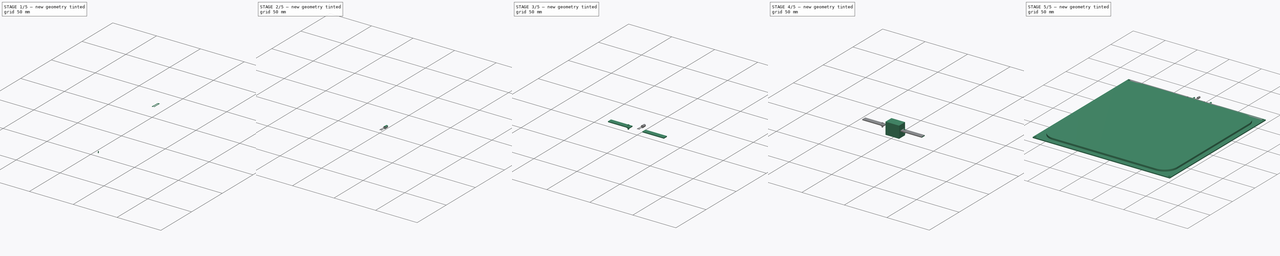
[diagram: build sequence overview — one tinted view per stage of 5, left to right]
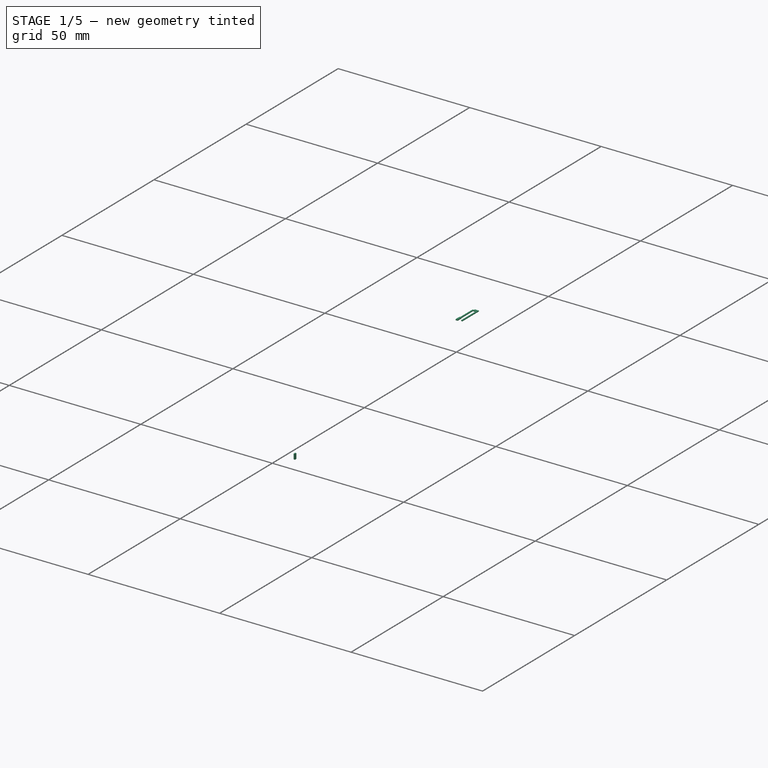
[diagram: stage 1 of 5 — iso view after this stage's code; geometry added in this stage tinted green]
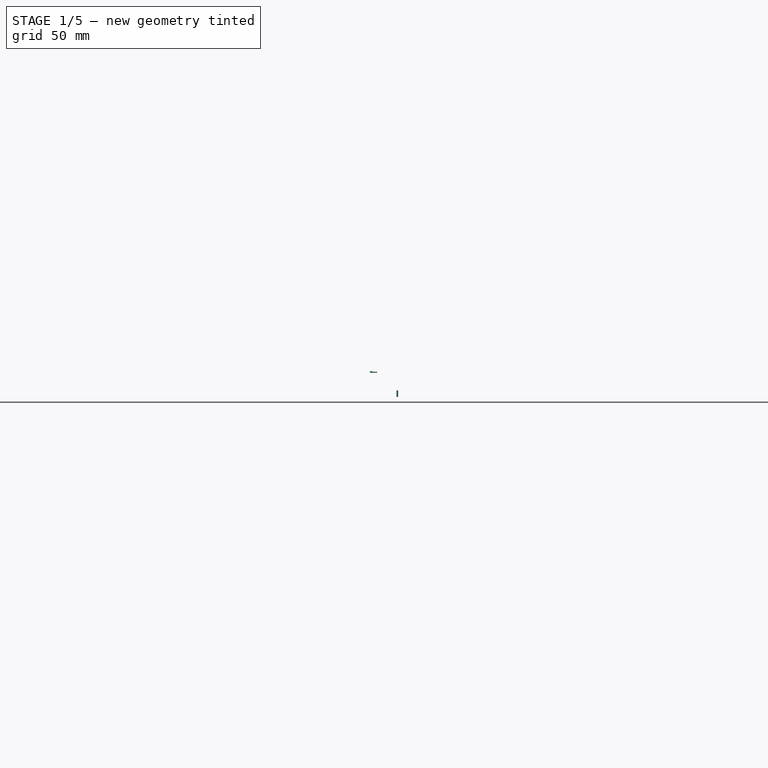
[diagram: stage 1 of 5 — front view after this stage's code; geometry added in this stage tinted green]
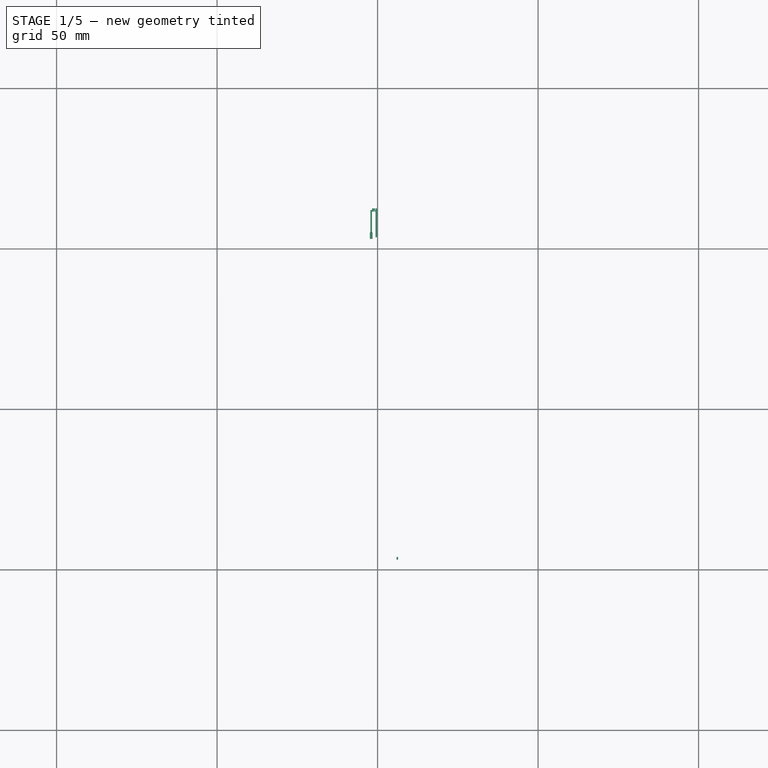
[diagram: stage 1 of 5 — top view after this stage's code; geometry added in this stage tinted green]
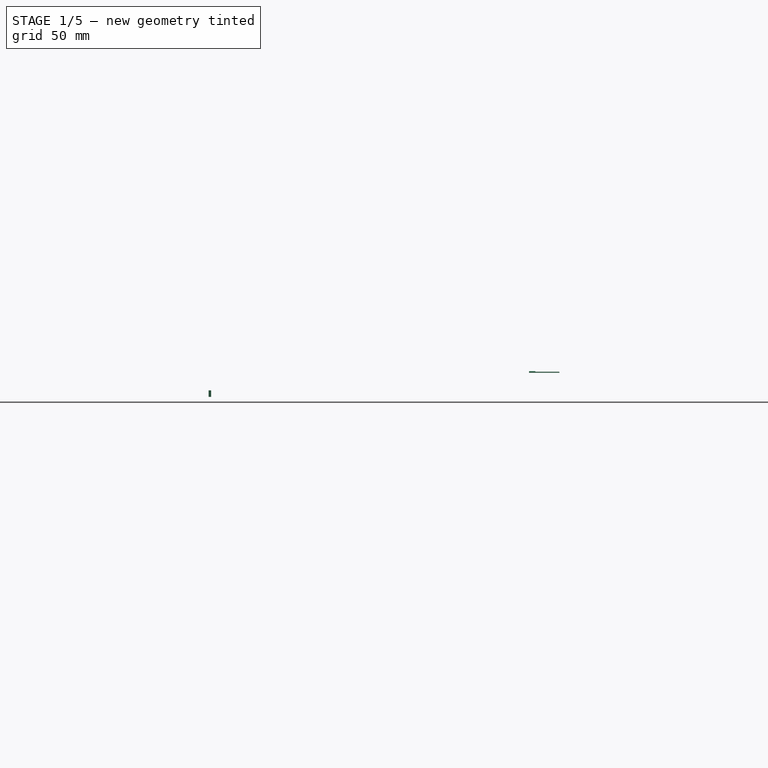
[diagram: stage 1 of 5 — right view after this stage's code; geometry added in this stage tinted green]
FCSTD DOCUMENT  (FreeCAD 0.14R3702 (Git))
Label: CamaCaliente
License: CC-BY 3.0
LicenseURL: http://creativecommons.org/licenses/by/3.0/
objects: Part::MultiFuse×8, Part::Box×7, Sketcher::SketchObject×7, Part::Cylinder×6, Part::Fillet×5, App::DocumentObjectGroup×3, PartDesign::Pad×2, Part::Sweep×2, PartDesign::LinearPattern×2, PartDesign::Pocket×1, Part::Sphere×1, PartDesign::MultiTransform×1
note: 45 computed .brp shape members not serialized (recipe doc carries the construction recipe); baked Part::Feature solids carry a one-line shape summary decoded from their .brp

FEATURE [Part::Box] Box002  label="Cubo002"
  Height = 2
  Length = 0.5
  Placement = pos=(5.9,1.6,-6) rot=(0,0,1;0rad)
  Width = 0.8
FEATURE [Part::Box] Box003  label="Cubo003"
  Height = 2
  Length = 0.5
  Placement = pos=(5.9,3.2,-6) rot=(0,0,1;0rad)
  Width = 0.8
FEATURE [Sketcher::SketchObject] Sketch001
  Placement = pos=(0,0,0) rot=(0.57735,0.57735,0.57735;2.0944rad)
  sketch-geometry (7):
    g0: LineSegment StartX=9.64785 StartY=-5.5142 StartZ=0 EndX=10.1478 EndY=-5.5142 EndZ=0
    g1: LineSegment StartX=10.1478 StartY=-5.5142 StartZ=0 EndX=10.1478 EndY=3.4858 EndZ=0
    g2: LineSegment StartX=10.1478 StartY=3.4858 StartZ=0 EndX=9.64785 EndY=3.4858 EndZ=0
    g3: LineSegment StartX=9.64785 StartY=3.4858 StartZ=0 EndX=9.64785 EndY=2.9858 EndZ=0
    g4: LineSegment StartX=9.64785 StartY=2.9858 StartZ=0 EndX=9.14785 EndY=2.4858 EndZ=0
    g5: LineSegment StartX=9.14785 StartY=2.4858 StartZ=0 EndX=9.64785 EndY=2.4858 EndZ=0
    g6: LineSegment StartX=9.64785 StartY=2.4858 StartZ=0 EndX=9.64785 EndY=-5.5142 EndZ=0
  constraints (19):
    c: Horizontal(g0)
    c: Coincident(g0,g1)
    c: Vertical(g1)
    c: Coincident(g1,g2)
    c: Coincident(g2,g3)
    c: Vertical(g3)
    c: Coincident(g3,g4)
    c: Coincident(g4,g5)
    c: Horizontal(g5)
    c: Coincident(g5,g6)
    c: Coincident(g6,g0)
    c: Vertical(g6)
    c: Equal(g0,g2)
    c: DistanceX(g0) = 0.5
    c: Angle(g5,g4) = 0.785398
    c: Horizontal(g2)
    c: DistanceY(g3) = -0.5
    c: DistanceY(g5,g3) = 0.5
    c: DistanceY(g6) = -8
FEATURE [PartDesign::Pad] Pad002  label="anodo"
  Length = 0.3
  Length2 = 100
  Placement = pos=(0,0,0) rot=(0.57735,0.57735,0.57735;2.0944rad)
  Sketch = -> Sketch001
  Type = 0
FEATURE [Sketcher::SketchObject] Sketch002
  Placement = pos=(0,0,0) rot=(0.57735,0.57735,0.57735;2.0944rad)
  sketch-geometry (9):
    g0: LineSegment StartX=8.0538 StartY=-5.51883 StartZ=0 EndX=8.0538 EndY=2.98117 EndZ=0
    g1: LineSegment StartX=8.0538 StartY=2.98117 StartZ=0 EndX=8.5538 EndY=2.98117 EndZ=0
    g2: LineSegment StartX=8.5538 StartY=2.98117 StartZ=0 EndX=8.5538 EndY=3.48117 EndZ=0
    g3: LineSegment StartX=8.5538 StartY=3.48117 StartZ=0 EndX=9.5538 EndY=3.48117 EndZ=0
    g4: LineSegment StartX=9.5538 StartY=3.48117 StartZ=0 EndX=9.5538 EndY=2.98117 EndZ=0
    g5: LineSegment StartX=9.5538 StartY=2.98117 StartZ=0 EndX=9.0538 EndY=2.48117 EndZ=0
    g6: LineSegment StartX=9.0538 StartY=2.48117 StartZ=0 EndX=8.5538 EndY=2.48117 EndZ=0
    g7: LineSegment StartX=8.5538 StartY=2.48117 StartZ=0 EndX=8.5538 EndY=-5.51883 EndZ=0
    g8: LineSegment StartX=8.5538 StartY=-5.51883 StartZ=0 EndX=8.0538 EndY=-5.51883 EndZ=0
  constraints (25):
    c: Vertical(g0)
    c: Coincident(g0,g1)
    c: Horizontal(g1)
    c: Coincident(g1,g2)
    c: Vertical(g2)
    c: Coincident(g2,g3)
    c: Horizontal(g3)
    c: Coincident(g3,g4)
    c: Coincident(g4,g5)
    c: Coincident(g5,g6)
    c: Horizontal(g6)
    c: Coincident(g6,g7)
    c: Vertical(g7)
    c: Coincident(g7,g8)
    c: Coincident(g8,g0)
    c: Horizontal(g8)
    c: Vertical(g4)
    c: Angle(g5,g6) = 2.35619
    c: DistanceX(g8) = -0.5
    c: Equal(g1,g8)
    c: Equal(g8,g4)
    c: DistanceY(g6,g2) = 1
    c: DistanceY(g2) = 0.5
    c: DistanceX(g3) = 1
    c: DistanceY(g7) = -8
FEATURE [PartDesign::Pad] Pad003  label="catodo"
  Length = 0.3
  Length2 = 100
  Placement = pos=(0,0,0) rot=(0.57735,0.57735,0.57735;2.0944rad)
  Sketch = -> Sketch002
  Type = 0
FEATURE [Part::MultiFuse] Fusion001  label="ACLed"
  Placement = pos=(-10.3,109,1.5) rot=(-0.57735,-0.57735,-0.57735;2.0944rad)
  Shapes = -> [Pad002,Pad003]
FEATURE [Part::Fillet] Fillet001  label="Soldadura01"
  Base = -> Box002
  Edges = 4 edges r=0.2: [Edge5,Edge6,Edge7,Edge8]
  Placement = pos=(-4,109,-4.4) rot=(-0.57735,-0.57735,-0.57735;2.0944rad)
FEATURE [Part::MultiFuse] Fusion006
  Shapes = -> [Fusion001,Fillet001]
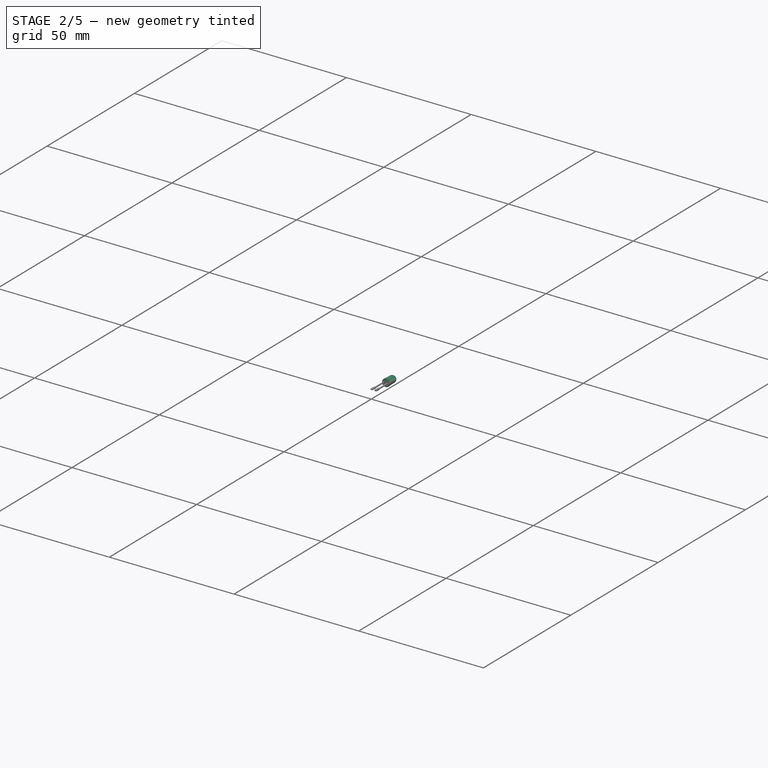
[diagram: stage 2 of 5 — iso view after this stage's code; geometry added in this stage tinted green]
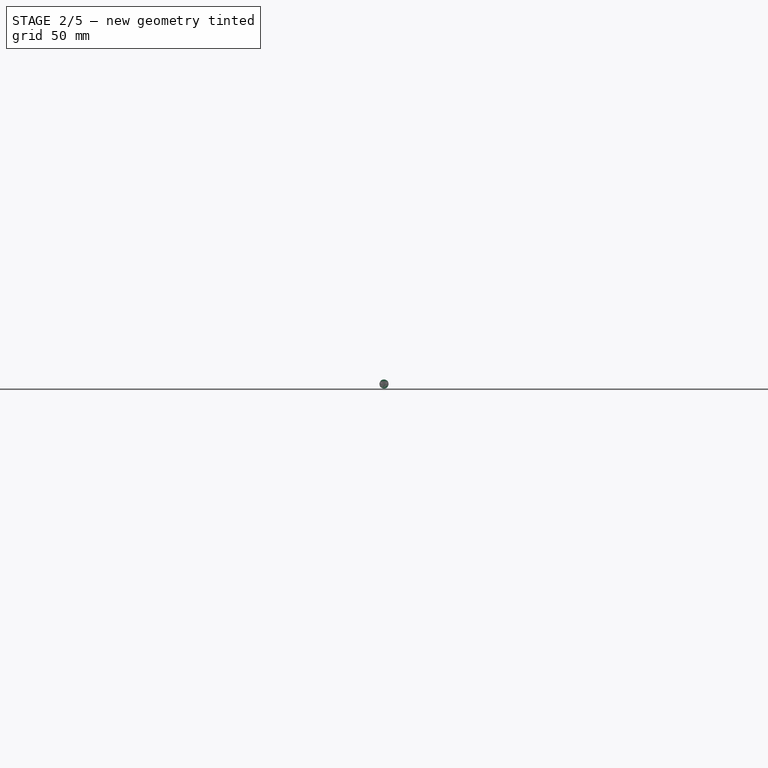
[diagram: stage 2 of 5 — front view after this stage's code; geometry added in this stage tinted green]
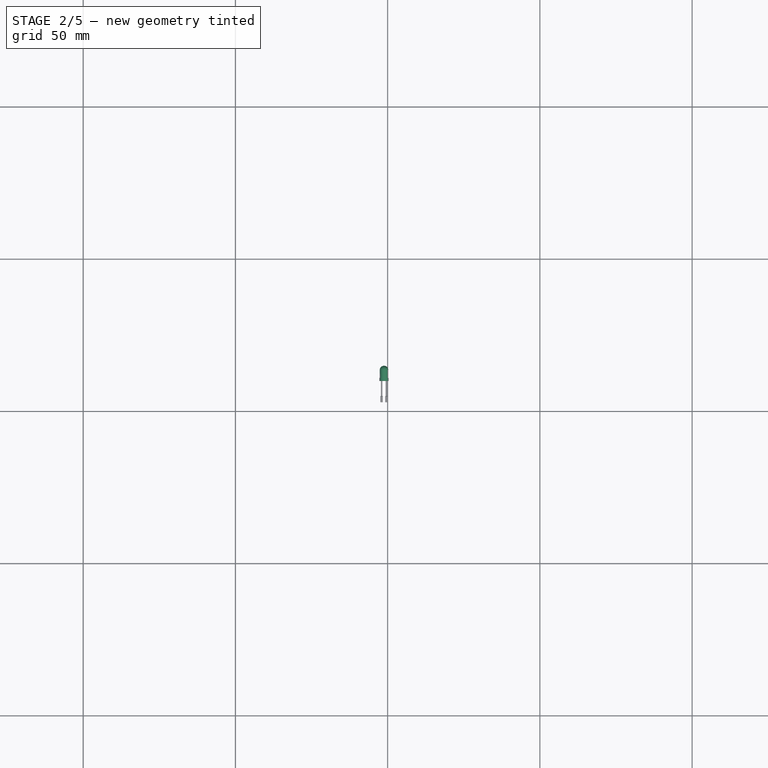
[diagram: stage 2 of 5 — top view after this stage's code; geometry added in this stage tinted green]
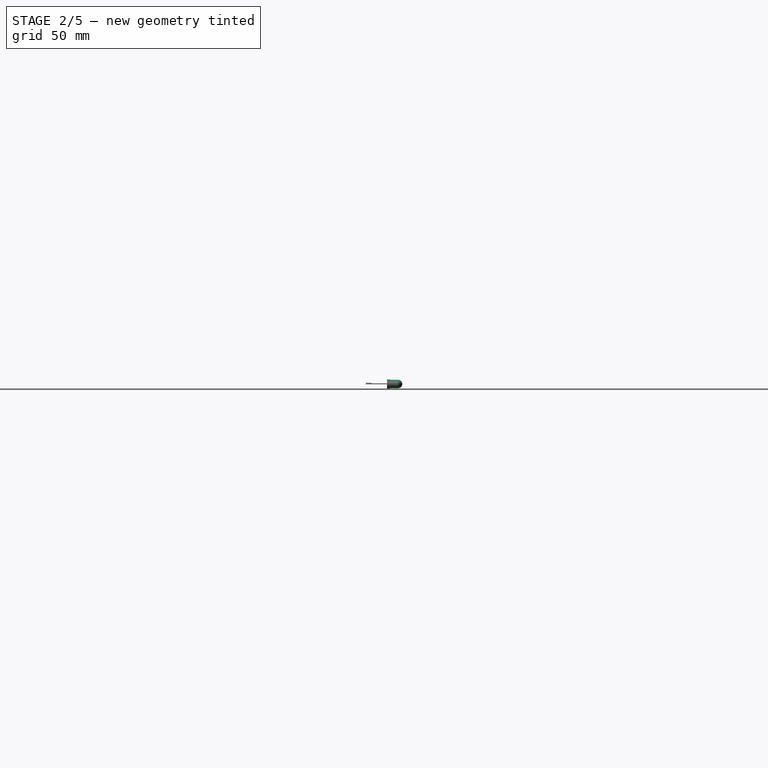
[diagram: stage 2 of 5 — right view after this stage's code; geometry added in this stage tinted green]
FEATURE [Part::Sphere] Sphere  label="Esféra"
  Angle1 = -90
  Angle2 = 90
  Angle3 = 180
  Placement = pos=(0,0,3.6) rot=(1,0,0;1.5708rad)
  Radius = 1.4
FEATURE [Part::Cylinder] Cylinder002  label="Cilindro002"
  Angle = 360
  Height = 1
  Radius = 1.5
FEATURE [Part::Cylinder] Cylinder003  label="Cilindro003"
  Angle = 360
  Height = 3.6
  Radius = 1.4
FEATURE [Part::MultiFuse] Fusion  label="FundaLed"
  Placement = pos=(-1.2,110,1.6) rot=(-0.57735,-0.57735,-0.57735;2.0944rad)
  Shapes = -> [Cylinder003,Cylinder002,Sphere]
FEATURE [Part::Fillet] Fillet002  label="Soldadura02"
  Base = -> Box003
  Edges = 4 edges r=0.2: [Edge5,Edge6,Edge7,Edge8]
  Placement = pos=(-4,109,-4.4) rot=(-0.57735,-0.57735,-0.57735;2.0944rad)
FEATURE [Part::MultiFuse] Fusion007  label="Led"
  Shapes = -> [Fillet002,Fusion006]
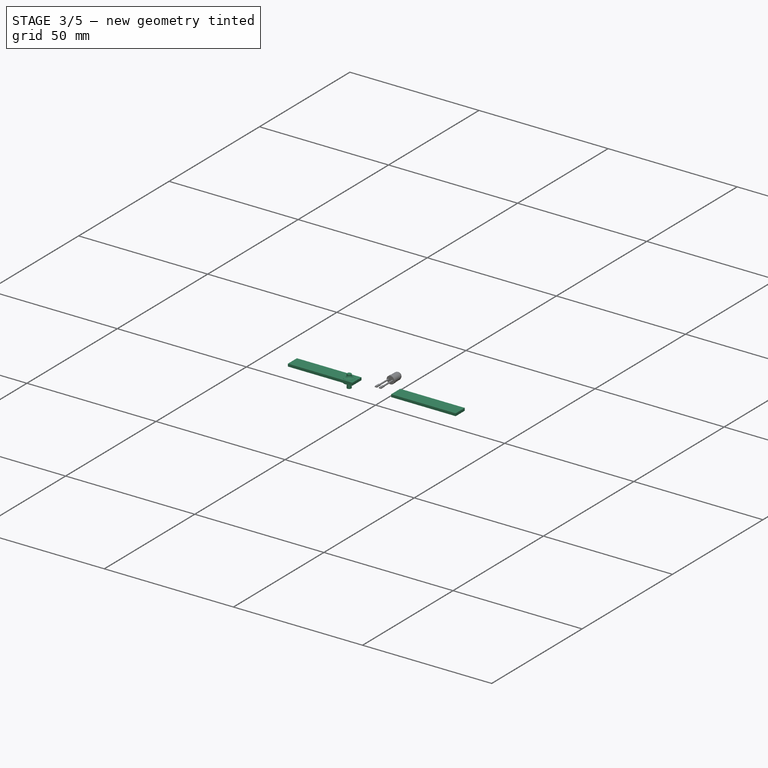
[diagram: stage 3 of 5 — iso view after this stage's code; geometry added in this stage tinted green]
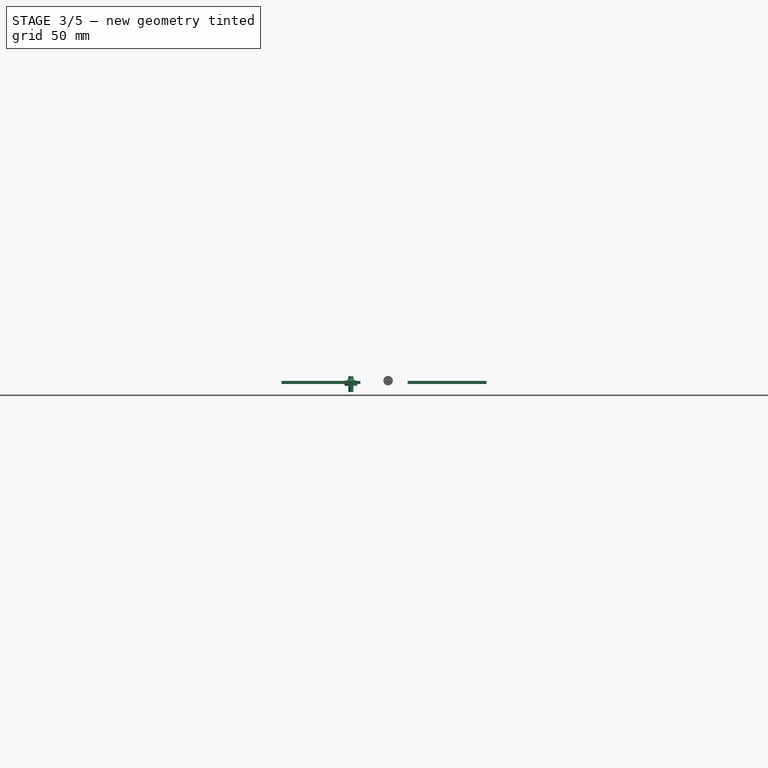
[diagram: stage 3 of 5 — front view after this stage's code; geometry added in this stage tinted green]
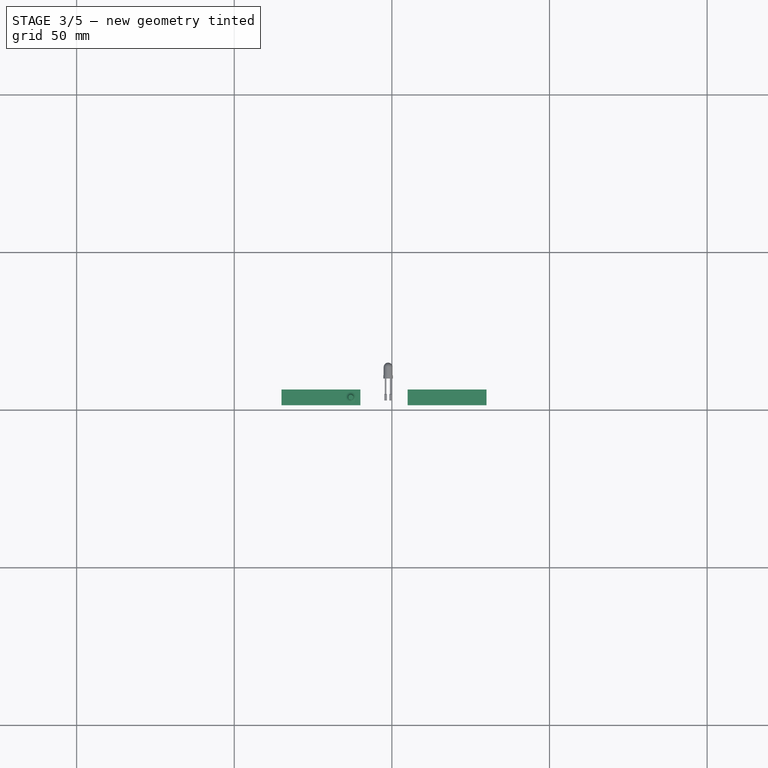
[diagram: stage 3 of 5 — top view after this stage's code; geometry added in this stage tinted green]
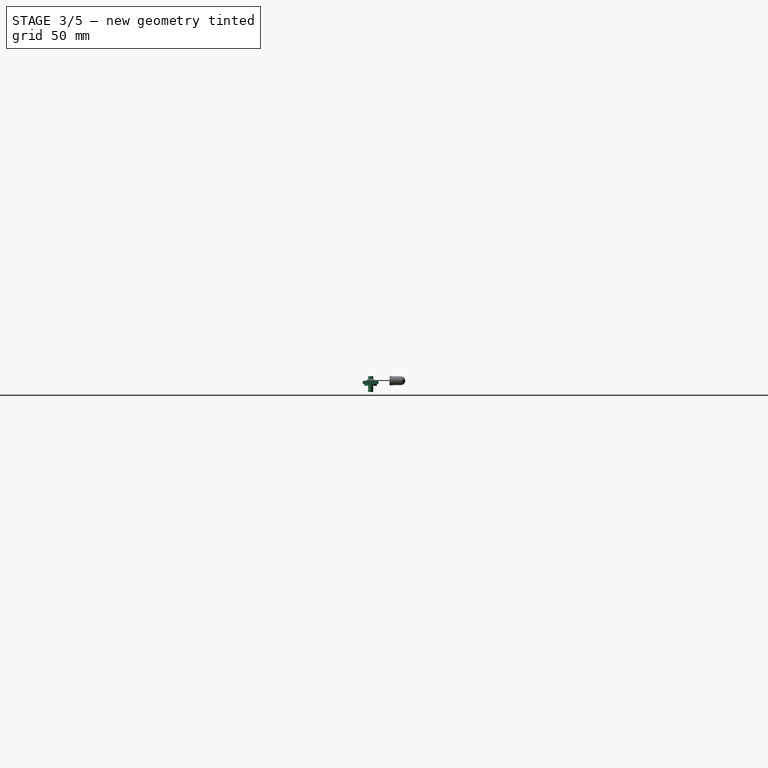
[diagram: stage 3 of 5 — right view after this stage's code; geometry added in this stage tinted green]
FEATURE [Part::Cylinder] Cylinder004  label="Cilindro004"
  Angle = 360
  Height = 5
  Placement = pos=(-8,104,-2) rot=(0,0,1;0rad)
  Radius = 0.8
FEATURE [Part::Cylinder] Cylinder006  label="Cilindro006"
  Angle = 360
  Height = 1.6
  Placement = pos=(-8,104,0) rot=(0,0,1;0rad)
  Radius = 2
FEATURE [Part::MultiFuse] Fusion003
  Shapes = -> [Cylinder006,Cylinder004]
FEATURE [Part::Fillet] Fillet003
  Base = -> Fusion003
  Edges = 1 edges r=1: [Edge4]
FEATURE [Part::Box] Box005  label="Cubo005"
  Height = 1
  Length = 25
  Placement = pos=(5,101.5,0.55) rot=(0,0,1;0rad)
  Width = 5
FEATURE [Part::Box] Box006  label="Cubo006"
  Height = 1
  Length = 25
  Placement = pos=(-30,101.5,0.55) rot=(0,0,1;0rad)
  Width = 5
FEATURE [Part::MultiFuse] Fusion005  label="SoldaduraNegro"
  Placement = pos=(-5,0,0) rot=(0,0,1;0rad)
  Shapes = -> [Box006,Fillet003]
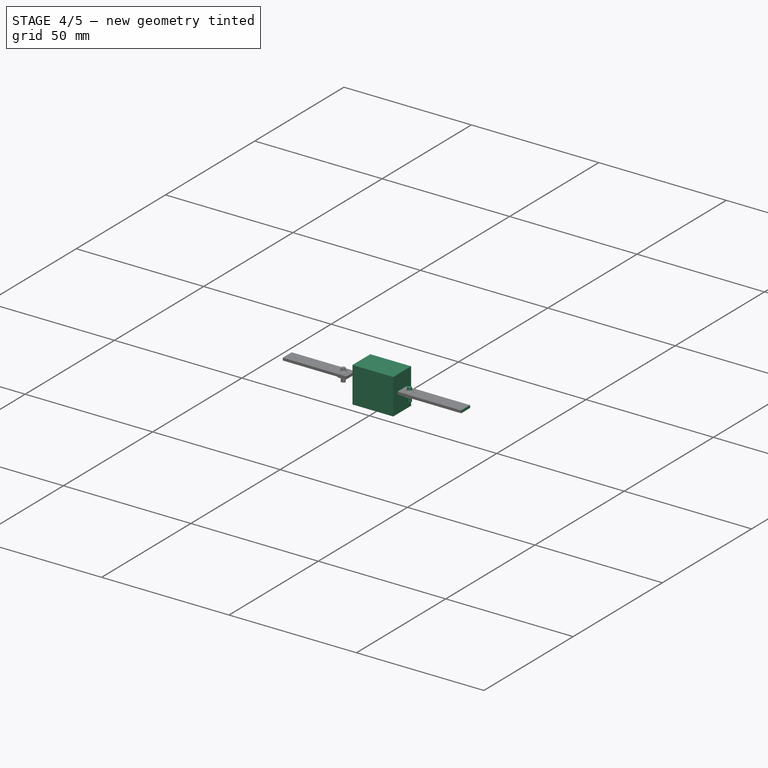
[diagram: stage 4 of 5 — iso view after this stage's code; geometry added in this stage tinted green]
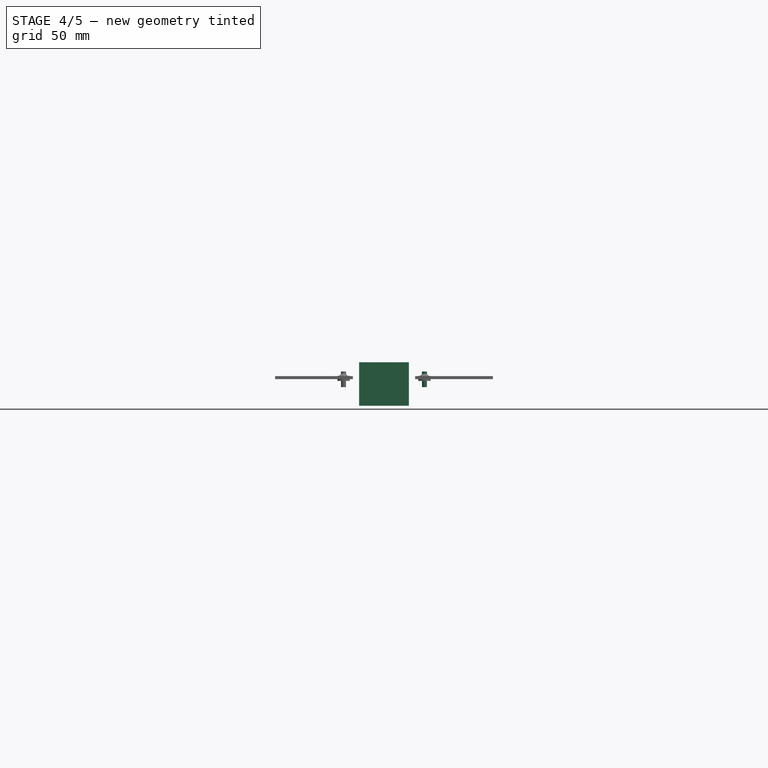
[diagram: stage 4 of 5 — front view after this stage's code; geometry added in this stage tinted green]
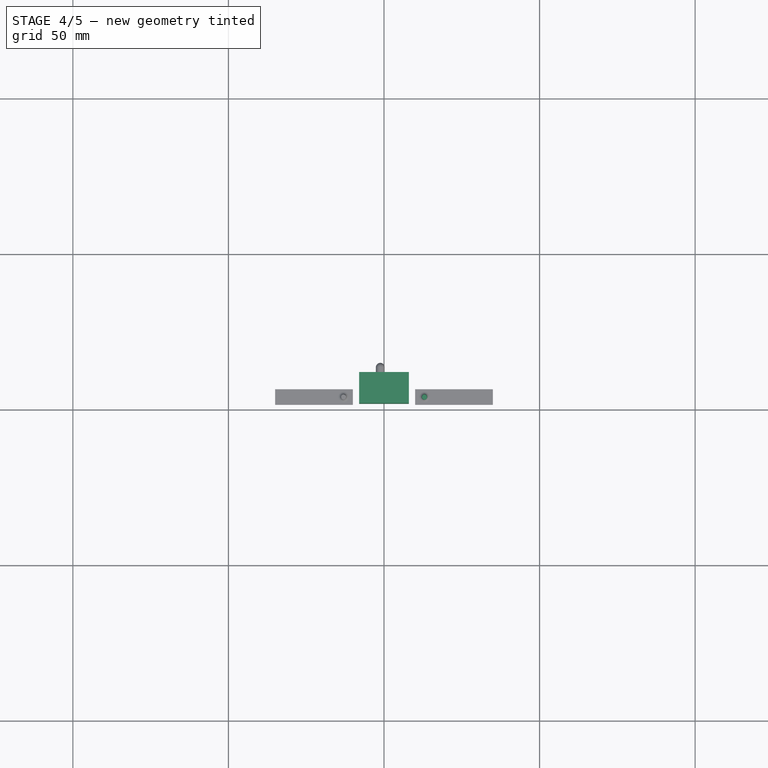
[diagram: stage 4 of 5 — top view after this stage's code; geometry added in this stage tinted green]
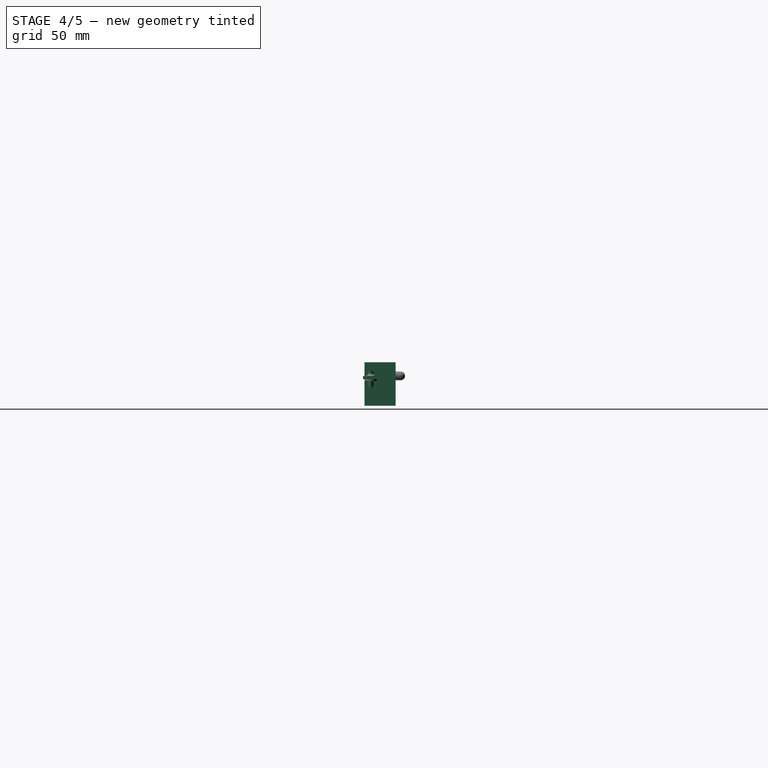
[diagram: stage 4 of 5 — right view after this stage's code; geometry added in this stage tinted green]
FEATURE [Part::Box] Box004  label="Cubo004"
  Height = 14
  Length = 16
  Placement = pos=(-8,102,-8) rot=(0,0,1;0rad)
  Width = 10
FEATURE [Part::Cylinder] Cylinder  label="Cilindro"
  Angle = 360
  Height = 5
  Placement = pos=(8,104,-2) rot=(0,0,1;0rad)
  Radius = 0.8
FEATURE [Part::Cylinder] Cylinder005  label="Cilindro005"
  Angle = 360
  Height = 1.6
  Placement = pos=(8,104,0) rot=(0,0,1;0rad)
  Radius = 2
FEATURE [Part::MultiFuse] Fusion002
  Shapes = -> [Cylinder,Cylinder005]
FEATURE [Part::Fillet] Fillet004
  Base = -> Fusion002
  Edges = 1 edges r=1: [Edge3]
FEATURE [Part::MultiFuse] Fusion004  label="SoldaduraRojo"
  Placement = pos=(5,0,0) rot=(0,0,1;0rad)
  Shapes = -> [Box005,Fillet004]
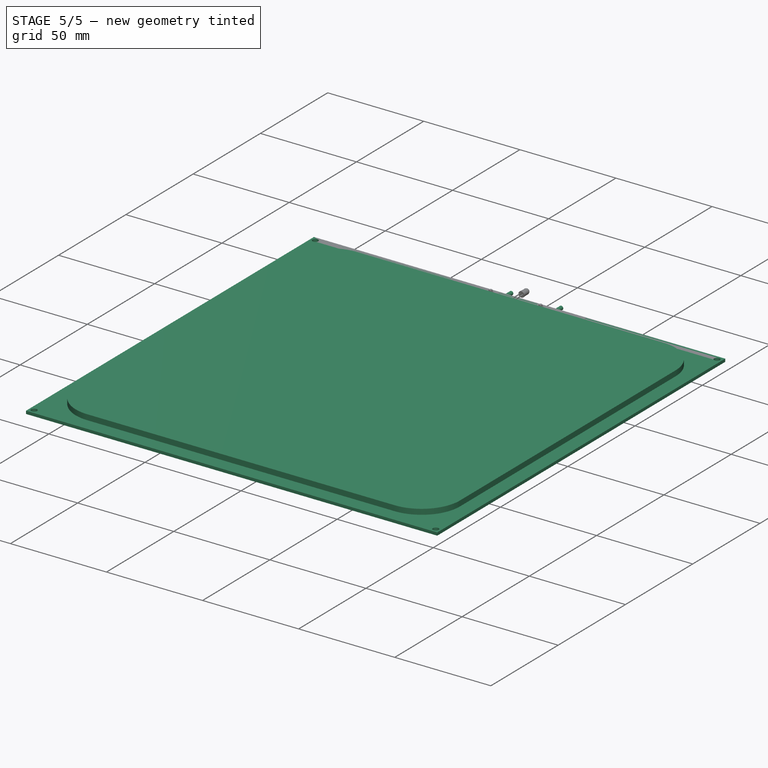
[diagram: stage 5 of 5 — iso view after this stage's code; geometry added in this stage tinted green]
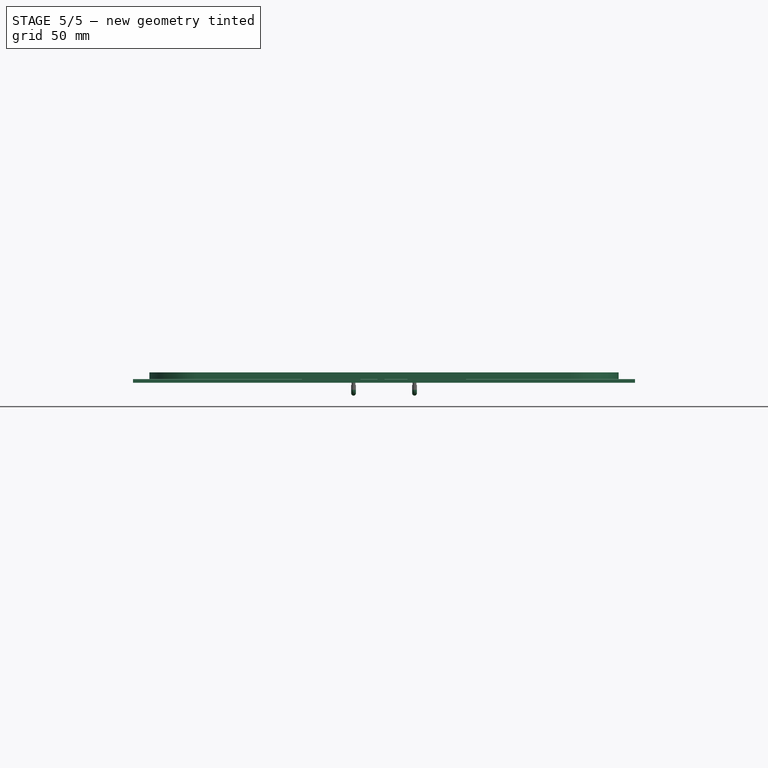
[diagram: stage 5 of 5 — front view after this stage's code; geometry added in this stage tinted green]
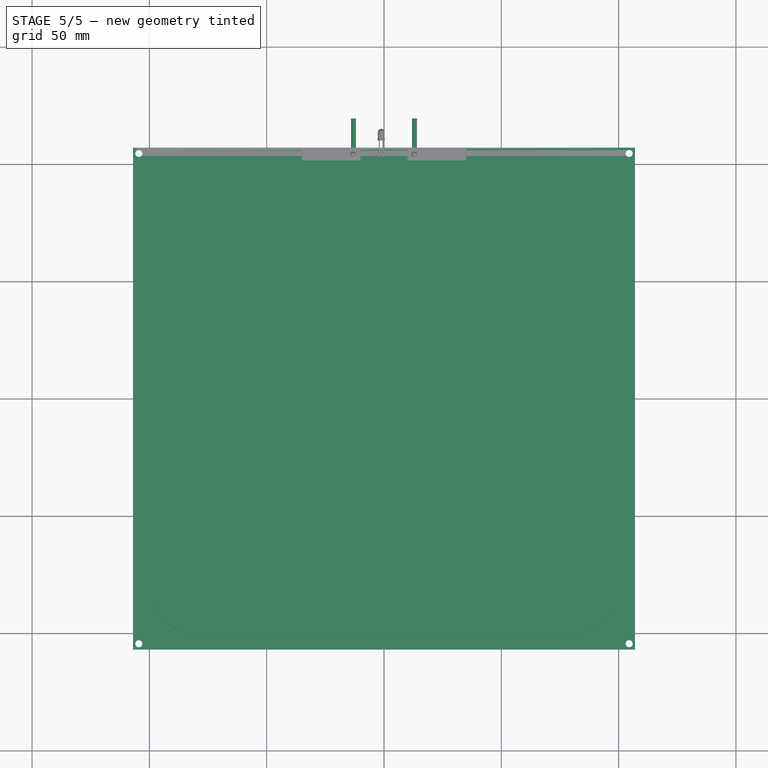
[diagram: stage 5 of 5 — top view after this stage's code; geometry added in this stage tinted green]
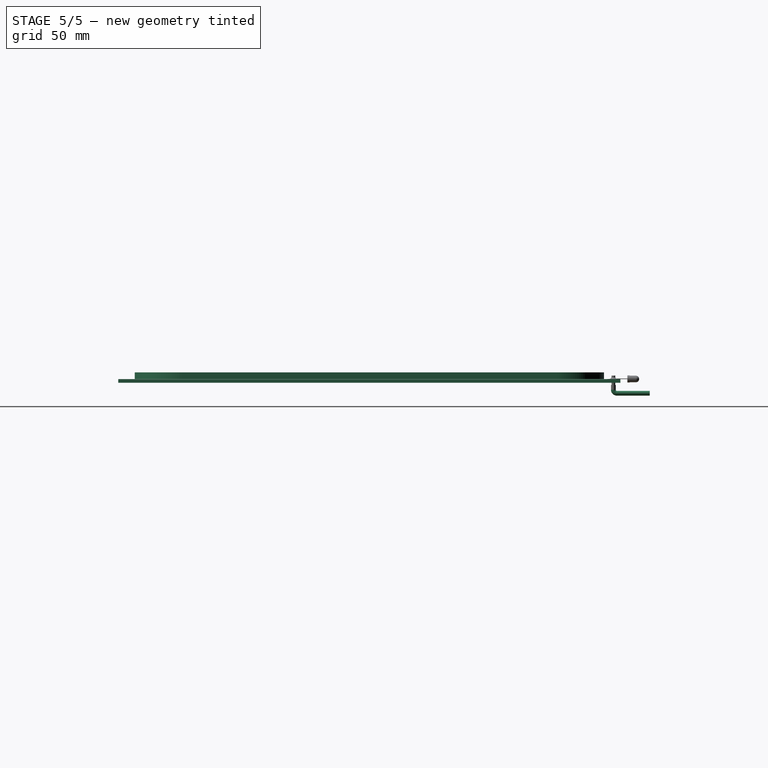
[diagram: stage 5 of 5 — right view after this stage's code; geometry added in this stage tinted green]
FEATURE [Part::Box] Box  label="Cubo"
  Height = 2.8
  Length = 200
  Width = 200
FEATURE [Part::Fillet] Fillet  label="Cristal"
  Base = -> Box
  Edges = 4 edges r=20: [Edge1,Edge3,Edge5,Edge7]
  Placement = pos=(-100,-100,1.6) rot=(0,0,1;0rad)
FEATURE [Part::Box] Box001  label="Cubo001"
  Height = 1.5
  Length = 214
  Placement = pos=(-107,-107,0) rot=(0,0,1;0rad)
  Width = 214
FEATURE [Sketcher::SketchObject] Sketch
  Placement = pos=(-107,-107,1.5) rot=(0,0,1;0rad)
  Support = -> Box001 [Face6]
  sketch-geometry (1):
    g0: Circle CenterX=2.5 CenterY=2.5 CenterZ=0 NormalX=0 NormalY=0 NormalZ=1 Radius=1.5
  constraints (3):
    c: Radius(g0) = 1.5
    c: DistanceY(g-1,g0) = 2.5
    c: DistanceX(g-1,g0) = 2.5
FEATURE [PartDesign::Pocket] Pocket
  Length = 5
  Placement = pos=(-107,-107,0) rot=(0,0,1;0rad)
  Sketch = -> Sketch
  Type = 1
FEATURE [Sketcher::SketchObject] Sketch003
  ExternalGeometry = -> [Box004]
  Placement = pos=(-8,102,-8) rot=(0.57735,-0.57735,-0.57735;2.0944rad)
  Support = -> Box004 [Face1]
  sketch-geometry (3):
    g0: LineSegment StartX=-2 StartY=7 StartZ=0 EndX=-2 EndY=5 EndZ=0
    g1: LineSegment StartX=-3.5 StartY=3.5 StartZ=0 EndX=-17.5 EndY=3.5 EndZ=0
    g2: ArcOfCircle CenterX=-3.5 CenterY=5 CenterZ=0 NormalX=0 NormalY=0 NormalZ=1 Radius=1.5 StartAngle=4.71239 EndAngle=6.28319
  constraints (9):
    c: Vertical(g0)
    c: Horizontal(g1)
    c: Tangent(g0,g2)
    c: Tangent(g1,g2)
    c: Radius(g2) = 1.5
    c: DistanceY(g0) = -2
    c: DistanceX(g1) = -14
    c: DistanceY(g0,g-3) = 7
    c: DistanceX(g0,g-3) = 2
FEATURE [Sketcher::SketchObject] Sketch004
  ExternalGeometry = -> [Box004]
  Placement = pos=(8,102,-8) rot=(0.57735,0.57735,0.57735;2.0944rad)
  Support = -> Box004 [Face2]
  sketch-geometry (3):
    g0: LineSegment StartX=2 StartY=7 StartZ=0 EndX=2 EndY=5 EndZ=0
    g1: LineSegment StartX=3.5 StartY=3.5 StartZ=0 EndX=17.5 EndY=3.5 EndZ=0
    g2: ArcOfCircle CenterX=3.5 CenterY=5 CenterZ=0 NormalX=0 NormalY=0 NormalZ=1 Radius=1.5 StartAngle=3.14159 EndAngle=4.71239
  constraints (9):
    c: Vertical(g0)
    c: Horizontal(g1)
    c: Tangent(g0,g2)
    c: Tangent(g1,g2)
    c: Radius(g2) = 1.5
    c: DistanceY(g0) = -2
    c: DistanceX(g1) = 14
    c: DistanceY(g-3,g0) = -7
    c: DistanceX(g0,g-3) = -2
FEATURE [Sketcher::SketchObject] Sketch005
  ExternalGeometry = -> [Box004]
  Placement = pos=(-8,112,-8) rot=(0,0.707107,0.707107;3.14159rad)
  Support = -> Box004 [Face4]
  sketch-geometry (1):
    g0: Circle CenterX=-16 CenterY=3.5114 CenterZ=0 NormalX=0 NormalY=0 NormalZ=1 Radius=1
  constraints (2):
    c: PointOnObject(g0,g-4)
    c: Radius(g0) = 1
FEATURE [Part::Sweep] Sweep  label="CableRojo"
  Frenet = true
  Placement = pos=(5,0,0) rot=(0,0,1;0rad)
  Sections = -> [Sketch005]
  Solid = true
  Spine = -> Sketch004 [Edge2,Edge3,Edge1]
  Transition = 1
FEATURE [Sketcher::SketchObject] Sketch006
  Placement = pos=(-8,112,-8) rot=(0,0.707107,0.707107;3.14159rad)
  Support = -> Box004 [Face4]
  sketch-geometry (1):
    g0: Circle CenterX=0 CenterY=3.48898 CenterZ=0 NormalX=0 NormalY=0 NormalZ=1 Radius=1
  constraints (2):
    c: PointOnObject(g0,g-2)
    c: Radius(g0) = 1
FEATURE [Part::Sweep] Sweep001  label="CableNegro"
  Frenet = true
  Placement = pos=(-5,0,0) rot=(0,0,1;0rad)
  Sections = -> [Sketch006]
  Solid = true
  Spine = -> Sketch003 [Edge3,Edge2,Edge1]
  Transition = 1
FEATURE [PartDesign::LinearPattern] LinearPattern
  Direction = -> Sketch [V_Axis]
  Length = 209
  Occurrences = 2
  Placement = pos=(-107,-107,0) rot=(0,0,1;0rad)
FEATURE [PartDesign::LinearPattern] LinearPattern001
  Direction = -> Sketch [H_Axis]
  Length = 209
  Occurrences = 2
  Placement = pos=(-107,-107,0) rot=(0,0,1;0rad)
FEATURE [PartDesign::MultiTransform] MultiTransform
  Originals = -> [Pocket]
  Placement = pos=(-107,-107,0) rot=(0,0,1;0rad)
  Transformations = -> [LinearPattern,LinearPattern001]
FEATURE [App::DocumentObjectGroup] Grupo  label="Cama"
  Group = -> [MultiTransform,Box001,Pocket]
FEATURE [App::DocumentObjectGroup] Grupo001  label="Cables"
  Group = -> [Sweep,Fusion004,Sweep001,Fusion005,Sketch003,Sketch004,Box004]
FEATURE [App::DocumentObjectGroup] Grupo002  label="DiodoLed"
  Group = -> [Fusion007,Fusion]
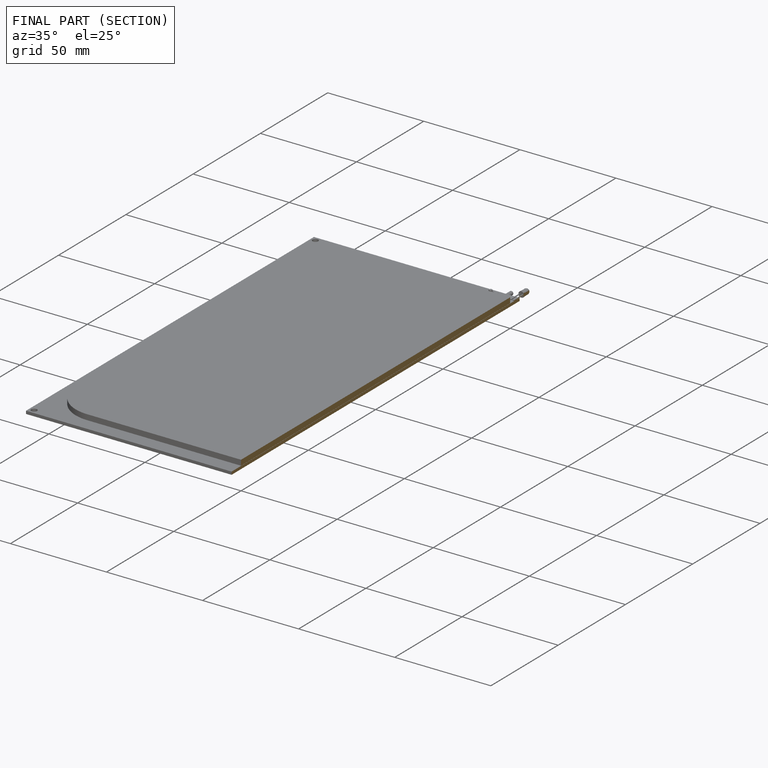
[diagram: finished part — half-section view (interior)]
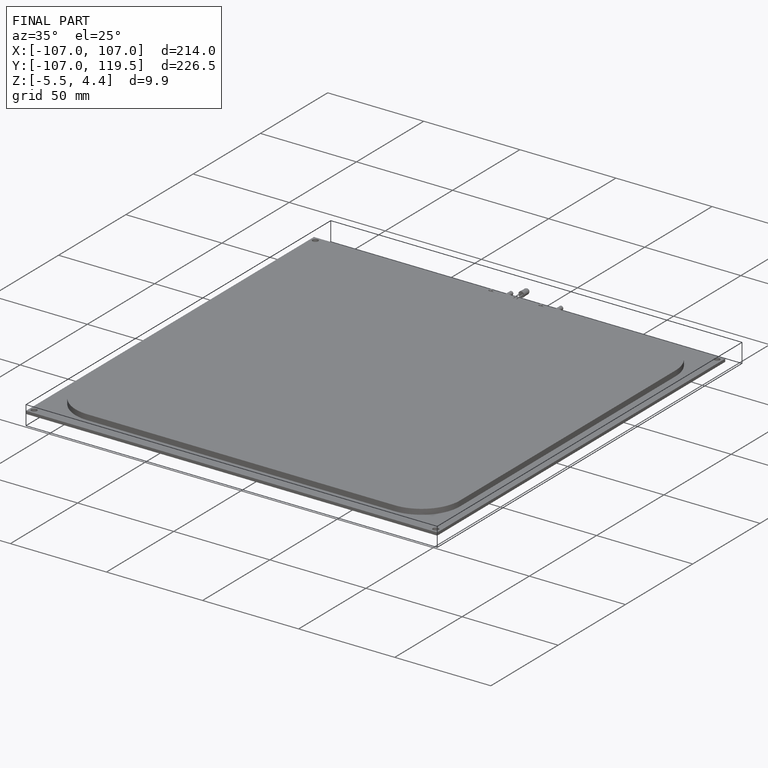
[diagram: finished part — iso view with bounding-box wireframe]
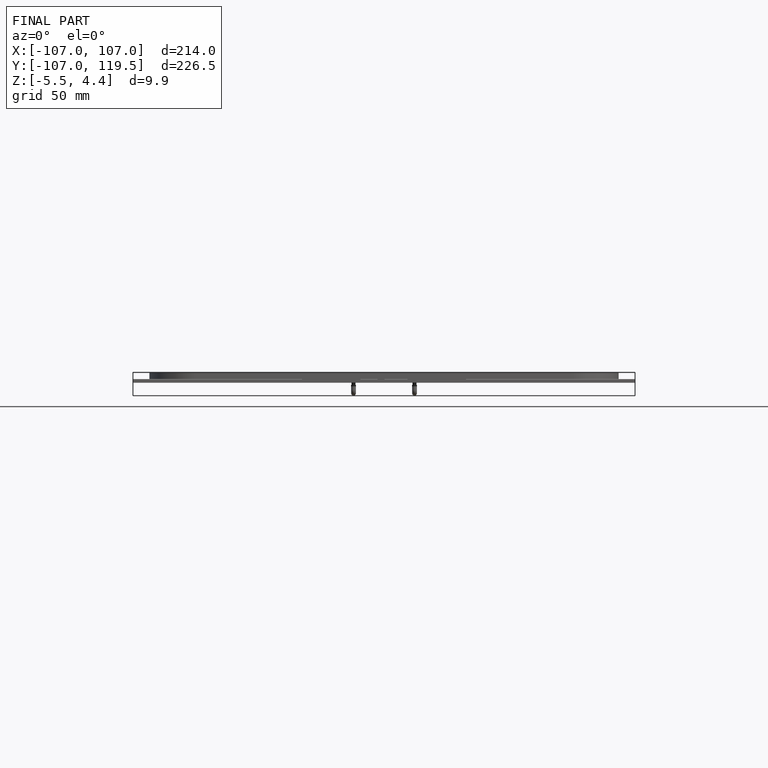
[diagram: finished part — front view with bounding-box wireframe]
